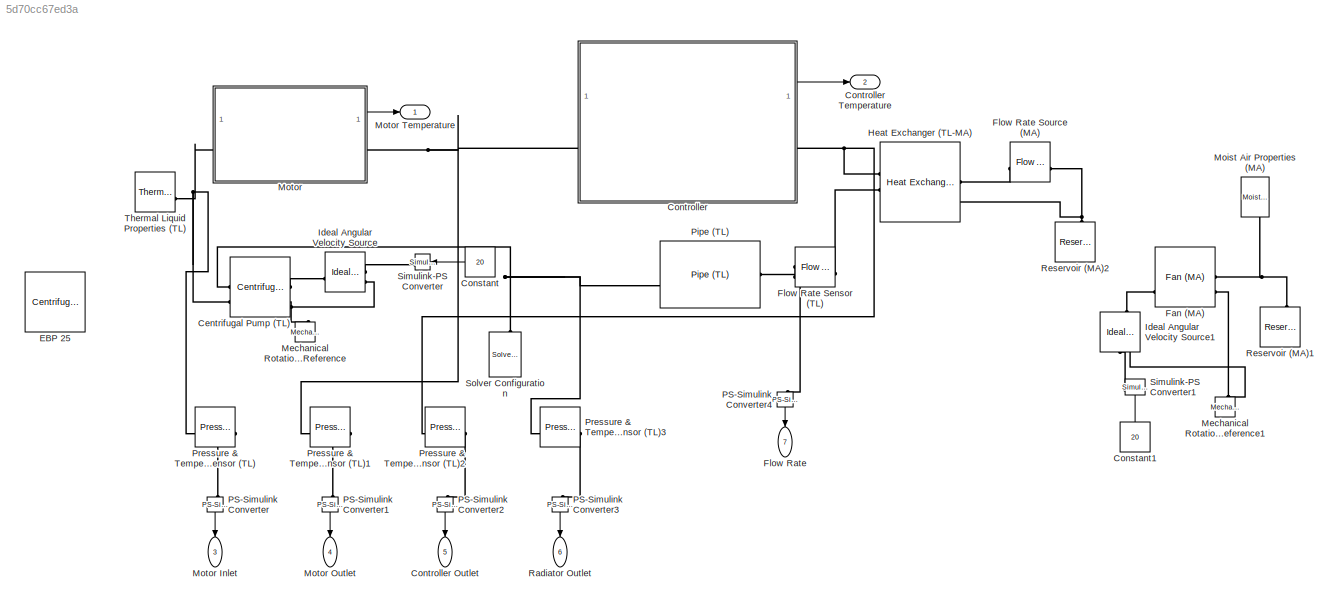
MODEL slx_5d70cc67ed3a
KIND model
CONFIG AbsTol = auto
CONFIG EnableMultiTasking = off
CONFIG FixedStep = auto
CONFIG MaxStep = auto
CONFIG MinStep = auto
CONFIG RelTol = 1e-3
CONFIG SampleTimeConstraint = Unconstrained
CONFIG SolverName = VariableStepAuto
CONFIG StartTime = 0.0
CONFIG StopTime = 2000
BLOCK [Reference] Centrifugal Pump (TL)  REF=SimscapeFluids_lib/Thermal Liquid/Pumps & Motors/Centrifugal Pump
(TL)
  SourceBlock = SimscapeFluids_lib/Thermal Liquid/Pumps & Motors/Centrifugal Pump\n(TL)
  SourceType = Centrifugal Pump\n(TL)
BLOCK [Constant] Constant
  NameLocation = top
  Value = 20
BLOCK [Constant] Constant1
  Commented = on
  NameLocation = right
  Value = 20
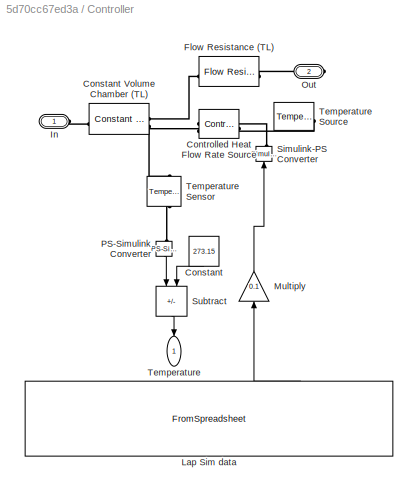
BLOCK [SubSystem] Controller
BLOCK [Outport] Controller Outlet
  NameLocation = left
  Port = 5
BLOCK [Outport] Controller Temperature
  Port = 2
BLOCK [Constant] Controller/Constant
  NameLocation = left
  Value = 273.15
BLOCK [Reference] Controller/Constant Volume Chamber (TL)  REF=fl_lib/Thermal Liquid/Elements/Constant Volume
Chamber (TL)
  SourceBlock = fl_lib/Thermal Liquid/Elements/Constant Volume\nChamber (TL)
  SourceType = Constant Volume\nChamber (TL)
BLOCK [Reference] Controller/Controlled Heat Flow Rate Source  REF=fl_lib/Thermal/Thermal Sources/Controlled Heat Flow
Rate Source
  NameLocation = top
  SourceBlock = fl_lib/Thermal/Thermal Sources/Controlled Heat Flow\nRate Source
  SourceType = Controlled Heat Flow\nRate Source
BLOCK [Reference] Controller/Flow Resistance (TL)  REF=fl_lib/Thermal Liquid/Elements/Flow Resistance (TL)
  SourceBlock = fl_lib/Thermal Liquid/Elements/Flow Resistance (TL)
  SourceType = Flow Resistance (TL)
BLOCK [PMIOPort] Controller/In
  Side = Left
BLOCK [FromSpreadsheet] Controller/Lap Sim data
  FileName = LapTime_Power_new__10.xlsx
  NameLocation = right
  SampleTime = 0.1
  SheetName = LapTime_Power_new__10
BLOCK [Gain] Controller/Multiply
  Gain = 0.1
  NameLocation = right
BLOCK [PMIOPort] Controller/Out
  Port = 2
  Side = Right
BLOCK [Reference] Controller/PS-Simulink Converter  REF=nesl_utility/PS-Simulink
Converter
  NameLocation = left
  SourceBlock = nesl_utility/PS-Simulink\nConverter
  SourceType = PS-Simulink\nConverter
BLOCK [Reference] Controller/Simulink-PS Converter  REF=nesl_utility/Simulink-PS
Converter
  NameLocation = right
  SourceBlock = nesl_utility/Simulink-PS\nConverter
  SourceType = Simulink-PS\nConverter
BLOCK [Sum] Controller/Subtract
  IconShape = rectangular
  Inputs = +-
  NameLocation = left
BLOCK [Outport] Controller/Temperature
  NameLocation = left
BLOCK [Reference] Controller/Temperature Sensor  REF=fl_lib/Thermal/Thermal Sensors/Temperature Sensor
  NameLocation = left
  SourceBlock = fl_lib/Thermal/Thermal Sensors/Temperature Sensor
  SourceType = Temperature Sensor
BLOCK [Reference] Controller/Temperature Source  REF=fl_lib/Thermal/Thermal Sources/Temperature Source
  NameLocation = top
  SourceBlock = fl_lib/Thermal/Thermal Sources/Temperature Source
  SourceType = Temperature Source
BLOCK [Reference] EBP 25  REF=SimscapeFluids_lib/Thermal Liquid/Pumps & Motors/Centrifugal Pump
(TL)
  Commented = on
  SourceBlock = SimscapeFluids_lib/Thermal Liquid/Pumps & Motors/Centrifugal Pump\n(TL)
  SourceType = Centrifugal Pump\n(TL)
BLOCK [Reference] Fan (MA)  REF=SimscapeFluids_lib/Moist Air/Turbomachinery/Fan (MA)
  Commented = on
  SourceBlock = SimscapeFluids_lib/Moist Air/Turbomachinery/Fan (MA)
  SourceType = Fan (MA)
BLOCK [Outport] Flow Rate
  NameLocation = left
  Port = 7
BLOCK [Reference] Flow Rate Sensor (TL)  REF=fl_lib/Thermal Liquid/Sensors/Flow Rate Sensor
(TL)
  NameLocation = right
  SourceBlock = fl_lib/Thermal Liquid/Sensors/Flow Rate Sensor\n(TL)
  SourceType = Flow Rate Sensor\n(TL)
BLOCK [Reference] Flow Rate Source (MA)  REF=fl_lib/Moist Air/Sources/Flow Rate Source
(MA)
  SourceBlock = fl_lib/Moist Air/Sources/Flow Rate Source\n(MA)
  SourceType = Flow Rate Source\n(MA)
BLOCK [Reference] Heat Exchanger (TL-MA)  REF=SimscapeFluids_lib/Heat Exchangers/Thermal Liquid -
Moist Air/Heat Exchanger
(TL-MA)
  SourceBlock = SimscapeFluids_lib/Heat Exchangers/Thermal Liquid -\nMoist Air/Heat Exchanger\n(TL-MA)
  SourceType = Heat Exchanger\n(TL-MA)
BLOCK [Reference] Ideal Angular Velocity Source  REF=fl_lib/Mechanical/Mechanical Sources/Ideal Angular
Velocity Source
  SourceBlock = fl_lib/Mechanical/Mechanical Sources/Ideal Angular\nVelocity Source
  SourceType = Ideal Angular\nVelocity Source
BLOCK [Reference] Ideal Angular Velocity Source1  REF=fl_lib/Mechanical/Mechanical Sources/Ideal Angular
Velocity Source
  Commented = on
  NameLocation = right
  SourceBlock = fl_lib/Mechanical/Mechanical Sources/Ideal Angular\nVelocity Source
  SourceType = Ideal Angular\nVelocity Source
BLOCK [Reference] Mechanical Rotational Reference  REF=fl_lib/Mechanical/Rotational Elements/Mechanical
Rotational Reference
  NameLocation = right
  SourceBlock = fl_lib/Mechanical/Rotational Elements/Mechanical\nRotational Reference
  SourceType = Mechanical\nRotational Reference
BLOCK [Reference] Mechanical Rotational Reference1  REF=fl_lib/Mechanical/Rotational Elements/Mechanical
Rotational Reference
  Commented = on
  NameLocation = right
  SourceBlock = fl_lib/Mechanical/Rotational Elements/Mechanical\nRotational Reference
  SourceType = Mechanical\nRotational Reference
BLOCK [Reference] Moist Air Properties (MA)  REF=fl_lib/Moist Air/Utilities/Moist Air Properties
(MA)
  Commented = on
  NameLocation = left
  SourceBlock = fl_lib/Moist Air/Utilities/Moist Air Properties\n(MA)
  SourceType = Moist Air Properties\n(MA)
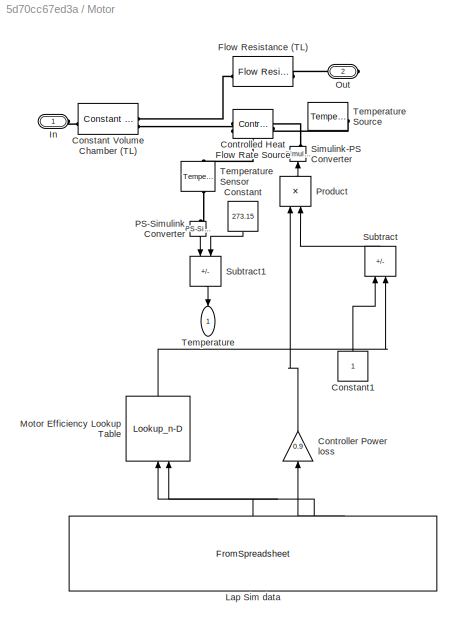
BLOCK [SubSystem] Motor
BLOCK [Outport] Motor Inlet
  NameLocation = left
  Port = 3
BLOCK [Outport] Motor Outlet
  NameLocation = left
  Port = 4
BLOCK [Outport] Motor Temperature
BLOCK [Constant] Motor/Constant
  NameLocation = left
  Value = 273.15
BLOCK [Reference] Motor/Constant Volume Chamber (TL)  REF=fl_lib/Thermal Liquid/Elements/Constant Volume
Chamber (TL)
  SourceBlock = fl_lib/Thermal Liquid/Elements/Constant Volume\nChamber (TL)
  SourceType = Constant Volume\nChamber (TL)
BLOCK [Constant] Motor/Constant1
  NameLocation = right
BLOCK [Reference] Motor/Controlled Heat Flow Rate Source  REF=fl_lib/Thermal/Thermal Sources/Controlled Heat Flow
Rate Source
  NameLocation = top
  SourceBlock = fl_lib/Thermal/Thermal Sources/Controlled Heat Flow\nRate Source
  SourceType = Controlled Heat Flow\nRate Source
BLOCK [Gain] Motor/Controller Power loss
  Gain = 0.9
  NameLocation = right
BLOCK [Reference] Motor/Flow Resistance (TL)  REF=fl_lib/Thermal Liquid/Elements/Flow Resistance (TL)
  SourceBlock = fl_lib/Thermal Liquid/Elements/Flow Resistance (TL)
  SourceType = Flow Resistance (TL)
BLOCK [PMIOPort] Motor/In
  Side = Left
BLOCK [FromSpreadsheet] Motor/Lap Sim data
  FileName = LapTime_Power_new__10.xlsx
  NameLocation = right
  SampleTime = 0.1
  SheetName = LapTime_Power_new__10
BLOCK [Lookup_n-D] Motor/Motor Efficiency Lookup Table
  BreakpointsForDimension1 = speed
  BreakpointsForDimension2 = torque
  InputPortMap = u0,u1
  InternalRulePriority = Speed
  NameLocation = right
  RndMeth = Simplest
  Table = efficiencyGrid
BLOCK [PMIOPort] Motor/Out
  Port = 2
  Side = Right
BLOCK [Reference] Motor/PS-Simulink Converter  REF=nesl_utility/PS-Simulink
Converter
  NameLocation = left
  SourceBlock = nesl_utility/PS-Simulink\nConverter
  SourceType = PS-Simulink\nConverter
BLOCK [Product] Motor/Product
  NameLocation = right
BLOCK [Reference] Motor/Simulink-PS Converter  REF=nesl_utility/Simulink-PS
Converter
  NameLocation = right
  SourceBlock = nesl_utility/Simulink-PS\nConverter
  SourceType = Simulink-PS\nConverter
BLOCK [Sum] Motor/Subtract
  IconShape = rectangular
  Inputs = +-
  NameLocation = right
BLOCK [Sum] Motor/Subtract1
  IconShape = rectangular
  Inputs = +-
  NameLocation = left
BLOCK [Outport] Motor/Temperature
  NameLocation = left
BLOCK [Reference] Motor/Temperature Sensor  REF=fl_lib/Thermal/Thermal Sensors/Temperature Sensor
  NameLocation = left
  SourceBlock = fl_lib/Thermal/Thermal Sensors/Temperature Sensor
  SourceType = Temperature Sensor
BLOCK [Reference] Motor/Temperature Source  REF=fl_lib/Thermal/Thermal Sources/Temperature Source
  NameLocation = top
  SourceBlock = fl_lib/Thermal/Thermal Sources/Temperature Source
  SourceType = Temperature Source
BLOCK [Reference] PS-Simulink Converter  REF=nesl_utility/PS-Simulink
Converter
  NameLocation = left
  SourceBlock = nesl_utility/PS-Simulink\nConverter
  SourceType = PS-Simulink\nConverter
BLOCK [Reference] PS-Simulink Converter1  REF=nesl_utility/PS-Simulink
Converter
  NameLocation = left
  SourceBlock = nesl_utility/PS-Simulink\nConverter
  SourceType = PS-Simulink\nConverter
BLOCK [Reference] PS-Simulink Converter2  REF=nesl_utility/PS-Simulink
Converter
  NameLocation = left
  SourceBlock = nesl_utility/PS-Simulink\nConverter
  SourceType = PS-Simulink\nConverter
BLOCK [Reference] PS-Simulink Converter3  REF=nesl_utility/PS-Simulink
Converter
  NameLocation = left
  SourceBlock = nesl_utility/PS-Simulink\nConverter
  SourceType = PS-Simulink\nConverter
BLOCK [Reference] PS-Simulink Converter4  REF=nesl_utility/PS-Simulink
Converter
  NameLocation = left
  SourceBlock = nesl_utility/PS-Simulink\nConverter
  SourceType = PS-Simulink\nConverter
BLOCK [Reference] Pipe (TL)  REF=fl_lib/Thermal Liquid/Elements/Pipe (TL)
  SourceBlock = fl_lib/Thermal Liquid/Elements/Pipe (TL)
  SourceType = Pipe (TL)
BLOCK [Reference] Pressure & Temperature Sensor (TL)  REF=fl_lib/Thermal Liquid/Sensors/Pressure &
Temperature Sensor
(TL)
  SourceBlock = fl_lib/Thermal Liquid/Sensors/Pressure &\nTemperature Sensor\n(TL)
  SourceType = Pressure &\nTemperature Sensor\n(TL)
BLOCK [Reference] Pressure & Temperature Sensor (TL)1  REF=fl_lib/Thermal Liquid/Sensors/Pressure &
Temperature Sensor
(TL)
  SourceBlock = fl_lib/Thermal Liquid/Sensors/Pressure &\nTemperature Sensor\n(TL)
  SourceType = Pressure &\nTemperature Sensor\n(TL)
BLOCK [Reference] Pressure & Temperature Sensor (TL)2  REF=fl_lib/Thermal Liquid/Sensors/Pressure &
Temperature Sensor
(TL)
  SourceBlock = fl_lib/Thermal Liquid/Sensors/Pressure &\nTemperature Sensor\n(TL)
  SourceType = Pressure &\nTemperature Sensor\n(TL)
BLOCK [Reference] Pressure & Temperature Sensor (TL)3  REF=fl_lib/Thermal Liquid/Sensors/Pressure &
Temperature Sensor
(TL)
  SourceBlock = fl_lib/Thermal Liquid/Sensors/Pressure &\nTemperature Sensor\n(TL)
  SourceType = Pressure &\nTemperature Sensor\n(TL)
BLOCK [Outport] Radiator Outlet
  NameLocation = left
  Port = 6
BLOCK [Reference] Reservoir (MA)1  REF=fl_lib/Moist Air/Elements/Reservoir (MA)
  Commented = on
  NameLocation = right
  SourceBlock = fl_lib/Moist Air/Elements/Reservoir (MA)
  SourceType = Reservoir (MA)
BLOCK [Reference] Reservoir (MA)2  REF=fl_lib/Moist Air/Elements/Reservoir (MA)
  NameLocation = right
  SourceBlock = fl_lib/Moist Air/Elements/Reservoir (MA)
  SourceType = Reservoir (MA)
BLOCK [Reference] Simulink-PS Converter  REF=nesl_utility/Simulink-PS
Converter
  SourceBlock = nesl_utility/Simulink-PS\nConverter
  SourceType = Simulink-PS\nConverter
BLOCK [Reference] Simulink-PS Converter1  REF=nesl_utility/Simulink-PS
Converter
  Commented = on
  NameLocation = right
  SourceBlock = nesl_utility/Simulink-PS\nConverter
  SourceType = Simulink-PS\nConverter
BLOCK [Reference] Solver Configuration  REF=nesl_utility/Solver
Configuration
  NameLocation = right
  SourceBlock = nesl_utility/Solver\nConfiguration
  SourceType = Solver\nConfiguration
BLOCK [Reference] Thermal Liquid Properties (TL)  REF=SimscapeFluids_lib/Thermal Liquid/Utilities/Thermal Liquid
Properties (TL)
  SourceBlock = SimscapeFluids_lib/Thermal Liquid/Utilities/Thermal Liquid\nProperties (TL)
  SourceType = Thermal Liquid\nProperties (TL)
LINE Constant1:1 -> Simulink-PS Converter1:1
LINE Constant:1 -> Simulink-PS Converter:1
LINE Controller/Constant:1 -> Controller/Subtract:2
LINE Controller/Lap Sim data:3 -> Controller/Multiply:1
LINE Controller/Multiply:1 -> Controller/Simulink-PS Converter:1
LINE Controller/PS-Simulink Converter:1 -> Controller/Subtract:1
LINE Controller/Subtract:1 -> Controller/Temperature:1
LINE Controller:1 -> Controller Temperature:1
LINE Motor/Constant1:1 -> Motor/Subtract:1
LINE Motor/Constant:1 -> Motor/Subtract1:2
LINE Motor/Controller Power loss:1 -> Motor/Product:1
LINE Motor/Lap Sim data:1 -> Motor/Motor Efficiency Lookup Table:1
LINE Motor/Lap Sim data:2 -> Motor/Motor Efficiency Lookup Table:2
LINE Motor/Lap Sim data:3 -> Motor/Controller Power loss:1
LINE Motor/Motor Efficiency Lookup Table:1 -> Motor/Subtract:2
LINE Motor/PS-Simulink Converter:1 -> Motor/Subtract1:1
LINE Motor/Product:1 -> Motor/Simulink-PS Converter:1
LINE Motor/Subtract1:1 -> Motor/Temperature:1
LINE Motor/Subtract:1 -> Motor/Product:2
LINE Motor:1 -> Motor Temperature:1
LINE PS-Simulink Converter1:1 -> Motor Outlet:1
LINE PS-Simulink Converter2:1 -> Controller Outlet:1
LINE PS-Simulink Converter3:1 -> Radiator Outlet:1
LINE PS-Simulink Converter4:1 -> Flow Rate:1
LINE PS-Simulink Converter:1 -> Motor Inlet:1
PNET net1: Centrifugal Pump (TL):LConn1 -- Pipe (TL):RConn1 -- Pressure & Temperature Sensor (TL)3:LConn1 -- Solver Configuration:RConn1
PNET net2: Centrifugal Pump (TL):LConn2 -- Motor:LConn1 -- Pressure & Temperature Sensor (TL):LConn1 -- Thermal Liquid Properties (TL):RConn1
PLINE Centrifugal Pump (TL):RConn1 -- Ideal Angular Velocity Source:LConn1
PNET net3: Centrifugal Pump (TL):RConn2 -- Ideal Angular Velocity Source:RConn2 -- Mechanical Rotational Reference:LConn1
PLINE Controller/Constant Volume Chamber (TL):LConn1 -- Controller/Flow Resistance (TL):LConn1
PNET net4: Controller/Constant Volume Chamber (TL):LConn2 -- Controller/Controlled Heat Flow Rate Source:LConn1 -- Controller/Temperature Sensor:LConn1
PLINE Controller/Constant Volume Chamber (TL):RConn1 -- Controller/In:RConn1
PLINE Controller/Controlled Heat Flow Rate Source:RConn1 -- Controller/Simulink-PS Converter:RConn1
PLINE Controller/Controlled Heat Flow Rate Source:RConn2 -- Controller/Temperature Source:LConn1
PLINE Controller/Flow Resistance (TL):RConn1 -- Controller/Out:RConn1
PLINE Controller/PS-Simulink Converter:LConn1 -- Controller/Temperature Sensor:RConn1
PNET net5: Controller:LConn1 -- Motor:RConn1 -- Pressure & Temperature Sensor (TL)1:LConn1
PNET net6: Controller:RConn1 -- Heat Exchanger (TL-MA):LConn1 -- Pressure & Temperature Sensor (TL)2:LConn1
PNET net7: Fan (MA):LConn1 -- Moist Air Properties (MA):RConn1 -- Reservoir (MA)1:LConn1
PNET net8: Fan (MA):LConn2 -- Ideal Angular Velocity Source1:RConn2 -- Mechanical Rotational Reference1:LConn1
PLINE Fan (MA):RConn2 -- Ideal Angular Velocity Source1:LConn1
PLINE Flow Rate Sensor (TL):LConn1 -- Heat Exchanger (TL-MA):LConn2
PLINE Flow Rate Sensor (TL):RConn1 -- Pipe (TL):LConn1
PLINE Flow Rate Sensor (TL):RConn2 -- PS-Simulink Converter4:LConn1
PNET net9: Flow Rate Source (MA):LConn1 -- Heat Exchanger (TL-MA):RConn2 -- Reservoir (MA)2:LConn1
PLINE Flow Rate Source (MA):RConn1 -- Heat Exchanger (TL-MA):RConn1
PLINE Ideal Angular Velocity Source1:RConn1 -- Simulink-PS Converter1:RConn1
PLINE Ideal Angular Velocity Source:RConn1 -- Simulink-PS Converter:RConn1
PLINE Motor/Constant Volume Chamber (TL):LConn1 -- Motor/Flow Resistance (TL):LConn1
PNET net10: Motor/Constant Volume Chamber (TL):LConn2 -- Motor/Controlled Heat Flow Rate Source:LConn1 -- Motor/Temperature Sensor:LConn1
PLINE Motor/Constant Volume Chamber (TL):RConn1 -- Motor/In:RConn1
PLINE Motor/Controlled Heat Flow Rate Source:RConn1 -- Motor/Simulink-PS Converter:RConn1
PLINE Motor/Controlled Heat Flow Rate Source:RConn2 -- Motor/Temperature Source:LConn1
PLINE Motor/Flow Resistance (TL):RConn1 -- Motor/Out:RConn1
PLINE Motor/PS-Simulink Converter:LConn1 -- Motor/Temperature Sensor:RConn1
PLINE PS-Simulink Converter1:LConn1 -- Pressure & Temperature Sensor (TL)1:RConn1
PLINE PS-Simulink Converter2:LConn1 -- Pressure & Temperature Sensor (TL)2:RConn1
PLINE PS-Simulink Converter3:LConn1 -- Pressure & Temperature Sensor (TL)3:RConn1
PLINE PS-Simulink Converter:LConn1 -- Pressure & Temperature Sensor (TL):RConn1
note: PNET lines group multi-terminal physical nets as a canonical sorted terminal list (undirected conserving connections); 2-terminal nets keep the pairwise PLINE form
